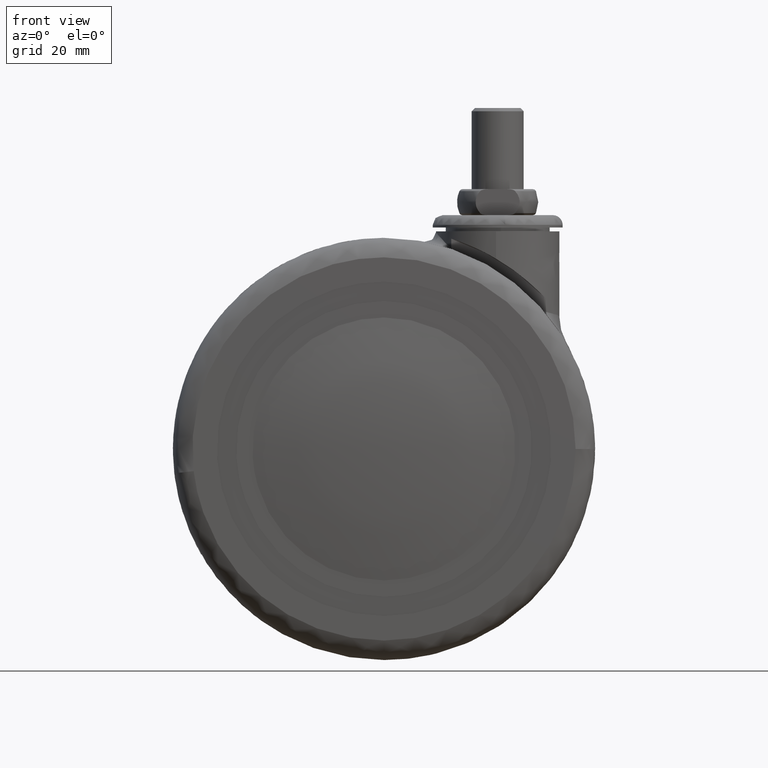
[diagram: clean part render]
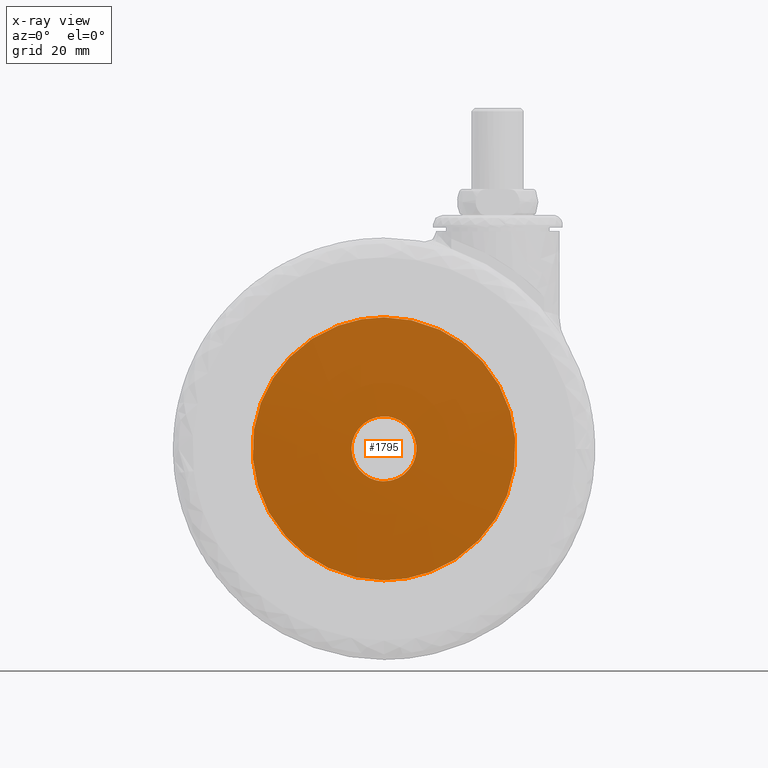
[diagram: x-ray — body ghosted, one internal face saturated and labeled with its STEP entity id]
A machine part, front view, then the same camera in x-ray: the body is ghosted and one INTERNAL B-rep face — a face not visible from any outside direction — is saturated and labeled: STEP entity #1795.
In plain terms, the highlighted face is a freeform B-spline surface patch.
Its self-contained STEP definition (entity closure, byte-faithful):
#62=CARTESIAN_POINT('',(9.922662138228596,29.800000000000001,1.241280021012510));
#63=VERTEX_POINT('',#62);
#64=CARTESIAN_POINT('',(0.0,29.800000000000001,10.000000000000050));
#65=VERTEX_POINT('',#64);
#66=CARTESIAN_POINT('',(9.922662138228596,29.800000000000008,1.241280021012511));
#67=CARTESIAN_POINT('',(8.826986001118289,29.799999999999997,10.000000000000055));
#68=CARTESIAN_POINT('',(0.0,29.800000000000001,10.000000000000050));
#76=(BOUNDED_CURVE()B_SPLINE_CURVE(2,(#66,#67,#68),.UNSPECIFIED.,.F.,.U.)B_SPLINE_CURVE_WITH_KNOTS((3,3),(0.771473928977981,1.0),.UNSPECIFIED.)CURVE()GEOMETRIC_REPRESENTATION_ITEM()RATIONAL_B_SPLINE_CURVE((0.954005430260591,0.732265053902277,1.0))REPRESENTATION_ITEM(''));
#77=EDGE_CURVE('',#63,#65,#76,.T.);
#118=CARTESIAN_POINT('',(-9.999619230637482,29.800000000000001,-0.087265355468306));
#119=VERTEX_POINT('',#118);
#125=CARTESIAN_POINT('',(0.0,29.800000000000001,10.000000000000050));
#126=CARTESIAN_POINT('',(-10.000000000000002,29.800000000000004,10.000000000000053));
#127=CARTESIAN_POINT('',(-10.0,29.800000000000001,5.396852E-014));
#128=CARTESIAN_POINT('',(-10.000000000000002,29.800000000000004,-0.043633508691610));
#129=CARTESIAN_POINT('',(-9.999619230637482,29.799999999999997,-0.087265355468306));
#137=(BOUNDED_CURVE()B_SPLINE_CURVE(2,(#125,#126,#127,#128,#129),.UNSPECIFIED.,.F.,.U.)B_SPLINE_CURVE_WITH_KNOTS((3,2,3),(0.0,0.250000000000000,0.251539894352060),.UNSPECIFIED.)CURVE()GEOMETRIC_REPRESENTATION_ITEM()RATIONAL_B_SPLINE_CURVE((1.0,0.707106781186548,1.0,0.998195901546370,0.996414028060894))REPRESENTATION_ITEM(''));
#138=EDGE_CURVE('',#65,#119,#137,.T.);
#165=CARTESIAN_POINT('',(0.0,29.800000000000001,-9.999999999999947));
#166=VERTEX_POINT('',#165);
#167=CARTESIAN_POINT('',(0.0,29.800000000000001,-9.999999999999947));
#168=CARTESIAN_POINT('',(10.000000000000002,29.800000000000004,-9.999999999999947));
#169=CARTESIAN_POINT('',(10.0,29.800000000000001,5.396852E-014));
#170=CARTESIAN_POINT('',(10.0,29.800000000000004,0.623049275551668));
#171=CARTESIAN_POINT('',(9.922662138228596,29.800000000000008,1.241280021012511));
#179=(BOUNDED_CURVE()B_SPLINE_CURVE(2,(#167,#168,#169,#170,#171),.UNSPECIFIED.,.F.,.U.)B_SPLINE_CURVE_WITH_KNOTS((3,2,3),(0.500000000000000,0.750000000000000,0.771473928977981),.UNSPECIFIED.)CURVE()GEOMETRIC_REPRESENTATION_ITEM()RATIONAL_B_SPLINE_CURVE((1.0,0.707106781186548,1.0,0.974841727284271,0.954005430260591))REPRESENTATION_ITEM(''));
#180=EDGE_CURVE('',#166,#63,#179,.T.);
#182=CARTESIAN_POINT('',(-9.999619230637482,29.799999999999997,-0.087265355468306));
#183=CARTESIAN_POINT('',(-9.913112104988887,29.799999999999997,-9.999999999999947));
#184=CARTESIAN_POINT('',(0.0,29.800000000000001,-9.999999999999947));
#192=(BOUNDED_CURVE()B_SPLINE_CURVE(2,(#182,#183,#184),.UNSPECIFIED.,.F.,.U.)B_SPLINE_CURVE_WITH_KNOTS((3,3),(0.251539894352060,0.500000000000000),.UNSPECIFIED.)CURVE()GEOMETRIC_REPRESENTATION_ITEM()RATIONAL_B_SPLINE_CURVE((0.996414028060894,0.708910879640178,1.0))REPRESENTATION_ITEM(''));
#193=EDGE_CURVE('',#119,#166,#192,.T.);
#447=CARTESIAN_POINT('',(40.375149525357799,29.800000000000001,3.177585477828068));
#448=VERTEX_POINT('',#447);
#454=CARTESIAN_POINT('',(0.0,29.800000000000001,40.499996897085907));
#455=VERTEX_POINT('',#454);
#456=CARTESIAN_POINT('',(0.0,29.800000000000001,40.499996897085907));
#457=CARTESIAN_POINT('',(37.437819164541615,29.800000000000001,40.499996897085907));
#458=CARTESIAN_POINT('',(40.375149525357799,29.799999999999994,3.177585477828069));
#466=(BOUNDED_CURVE()B_SPLINE_CURVE(2,(#456,#457,#458),.UNSPECIFIED.,.F.,.U.)B_SPLINE_CURVE_WITH_KNOTS((3,3),(0.0,0.236331333137269),.UNSPECIFIED.)CURVE()GEOMETRIC_REPRESENTATION_ITEM()RATIONAL_B_SPLINE_CURVE((1.0,0.723120620523803,0.969723424006242))REPRESENTATION_ITEM(''));
#467=EDGE_CURVE('',#455,#448,#466,.T.);
#469=CARTESIAN_POINT('',(-40.375149525357799,29.800000000000001,-3.177585477828079));
#470=VERTEX_POINT('',#469);
#471=CARTESIAN_POINT('',(-40.375149525357806,29.799999999999994,-3.177585477828079));
#472=CARTESIAN_POINT('',(-40.499996897085857,29.800000000000008,-1.591245366284094));
#473=CARTESIAN_POINT('',(-40.499996897085850,29.800000000000001,5.396852E-014));
#474=CARTESIAN_POINT('',(-40.499996897085850,29.800000000000004,40.499996897085907));
#475=CARTESIAN_POINT('',(0.0,29.800000000000001,40.499996897085907));
#483=(BOUNDED_CURVE()B_SPLINE_CURVE(2,(#471,#472,#473,#474,#475),.UNSPECIFIED.,.F.,.U.)B_SPLINE_CURVE_WITH_KNOTS((3,2,3),(0.736331333137269,0.750000000000000,1.0),.UNSPECIFIED.)CURVE()GEOMETRIC_REPRESENTATION_ITEM()RATIONAL_B_SPLINE_CURVE((0.969723424006241,0.983986160662744,1.0,0.707106781186548,1.0))REPRESENTATION_ITEM(''));
#484=EDGE_CURVE('',#470,#455,#483,.T.);
#560=CARTESIAN_POINT('',(0.0,29.800000000000001,-40.499996897085801));
#561=VERTEX_POINT('',#560);
#562=CARTESIAN_POINT('',(0.0,29.800000000000001,-40.499996897085801));
#563=CARTESIAN_POINT('',(-37.437819164541516,29.799999999999990,-40.499996897085794));
#564=CARTESIAN_POINT('',(-40.375149525357806,29.799999999999994,-3.177585477828079));
#572=(BOUNDED_CURVE()B_SPLINE_CURVE(2,(#562,#563,#564),.UNSPECIFIED.,.F.,.U.)B_SPLINE_CURVE_WITH_KNOTS((3,3),(0.500000000000000,0.736331333137269),.UNSPECIFIED.)CURVE()GEOMETRIC_REPRESENTATION_ITEM()RATIONAL_B_SPLINE_CURVE((1.0,0.723120620523804,0.969723424006241))REPRESENTATION_ITEM(''));
#573=EDGE_CURVE('',#561,#470,#572,.T.);
#575=CARTESIAN_POINT('',(40.375149525357799,29.799999999999994,3.177585477828069));
#576=CARTESIAN_POINT('',(40.499996897085843,29.800000000000001,1.591245366284146));
#577=CARTESIAN_POINT('',(40.499996897085850,29.800000000000001,5.396852E-014));
#578=CARTESIAN_POINT('',(40.499996897085850,29.800000000000004,-40.499996897085794));
#579=CARTESIAN_POINT('',(0.0,29.800000000000001,-40.499996897085801));
#587=(BOUNDED_CURVE()B_SPLINE_CURVE(2,(#575,#576,#577,#578,#579),.UNSPECIFIED.,.F.,.U.)B_SPLINE_CURVE_WITH_KNOTS((3,2,3),(0.236331333137269,0.250000000000000,0.500000000000000),.UNSPECIFIED.)CURVE()GEOMETRIC_REPRESENTATION_ITEM()RATIONAL_B_SPLINE_CURVE((0.969723424006242,0.983986160662744,1.0,0.707106781186548,1.0))REPRESENTATION_ITEM(''));
#588=EDGE_CURVE('',#448,#561,#587,.T.);
#1778=CARTESIAN_POINT('',(44.533580742620572,29.800000000000001,-44.545945669740981));
#1779=CARTESIAN_POINT('',(44.533580742620572,29.800000000000001,44.545948566526597));
#1780=CARTESIAN_POINT('',(-44.533580018424182,29.800000000000001,-44.545945669740981));
#1781=CARTESIAN_POINT('',(-44.533580018424182,29.800000000000001,44.545948566526597));
#1782=B_SPLINE_SURFACE_WITH_KNOTS('',1,1,((#1778,#1780),(#1779,#1781)),.UNSPECIFIED.,.F.,.F.,.U.,(2,2),(2,2),(0.0,89.091894236267578),(0.0,89.067160761044761),.UNSPECIFIED.);
#1783=ORIENTED_EDGE('',*,*,#467,.T.);
#1784=ORIENTED_EDGE('',*,*,#588,.T.);
#1785=ORIENTED_EDGE('',*,*,#573,.T.);
#1786=ORIENTED_EDGE('',*,*,#484,.T.);
#1787=EDGE_LOOP('',(#1783,#1784,#1785,#1786));
#1788=FACE_OUTER_BOUND('',#1787,.T.);
#1789=ORIENTED_EDGE('',*,*,#138,.T.);
#1790=ORIENTED_EDGE('',*,*,#193,.T.);
#1791=ORIENTED_EDGE('',*,*,#180,.T.);
#1792=ORIENTED_EDGE('',*,*,#77,.T.);
#1793=EDGE_LOOP('',(#1789,#1790,#1791,#1792));
#1794=FACE_BOUND('',#1793,.T.);
#1795=ADVANCED_FACE('',(#1788,#1794),#1782,.F.);